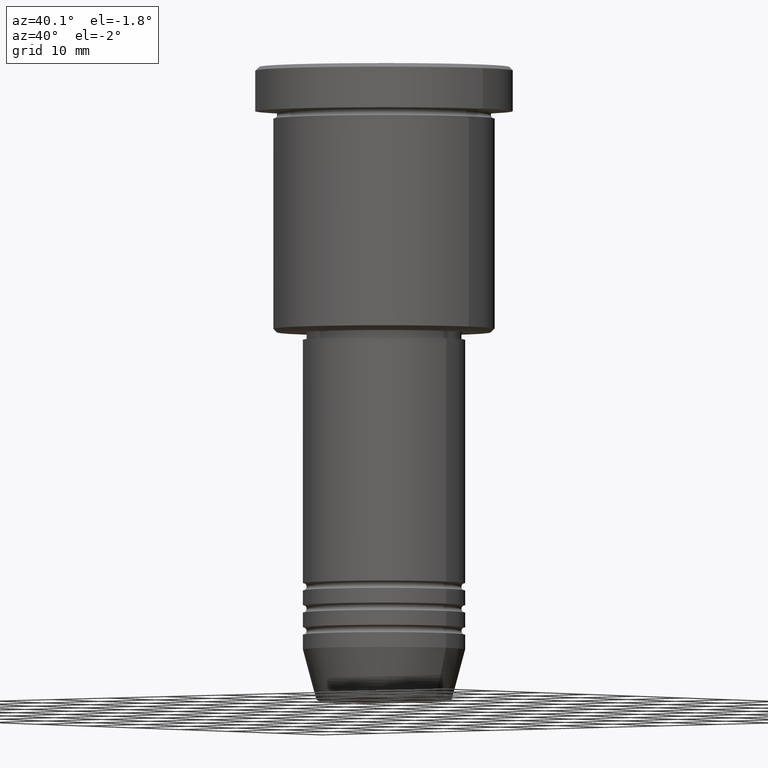
[diagram: clean part render]
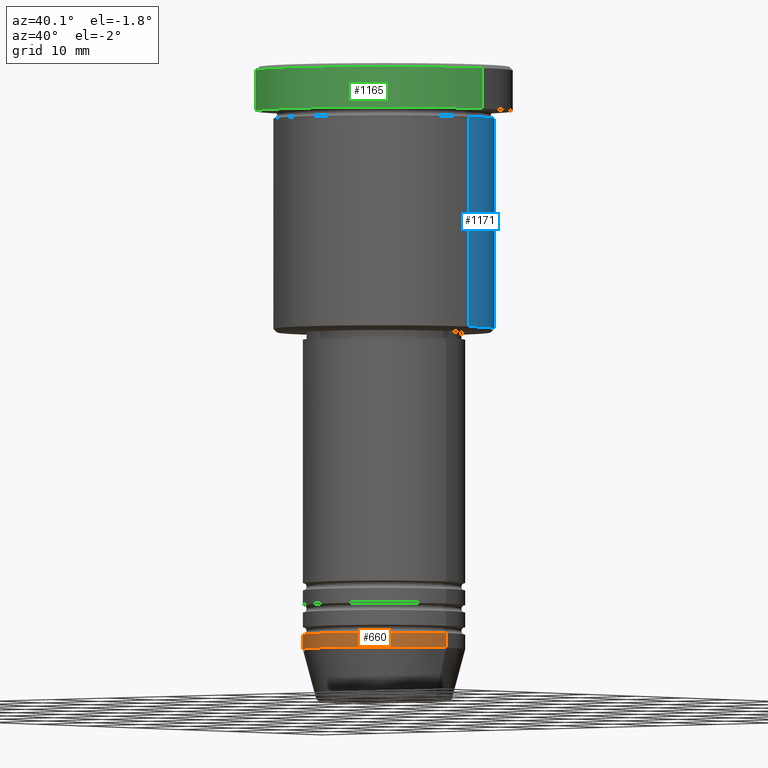
[diagram: same view with three faces highlighted in distinct colors, each labeled with its STEP entity id]
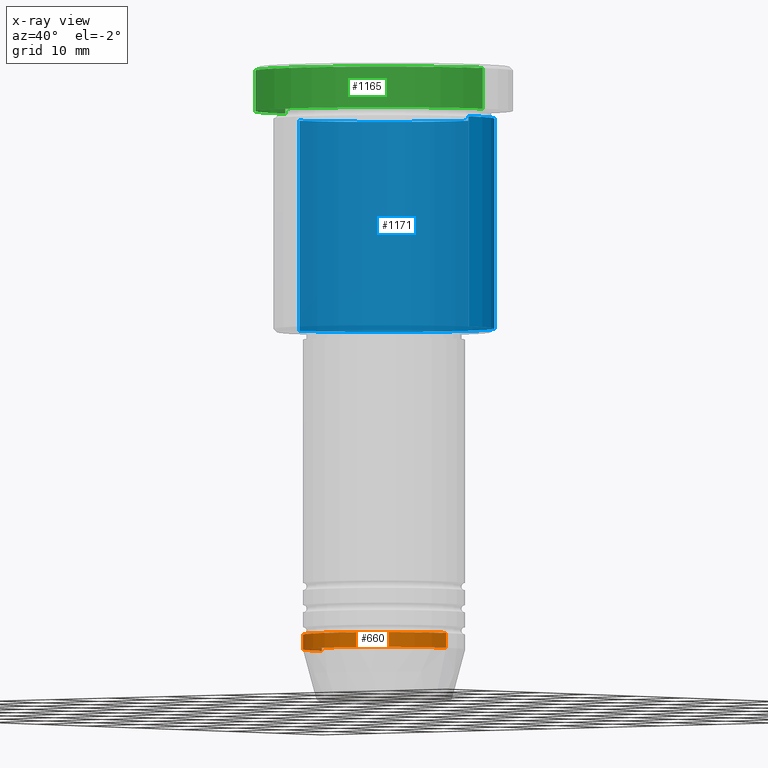
[diagram: x-ray of the same camera — body ghosted, the three highlighted faces saturated]
A machine part, auxiliary view with three faces highlighted in distinct colors.
The next image is the same camera in x-ray (body ghosted, the three faces saturated) — at least one of them is partly hidden behind the body in this view.
Their STEP definitions:

[orange] entity #660 — the highlighted cylindrical surface (partial cylindrical patch) has radius 11 mm, axis along (-0, -0, 1).
#15 = EDGE_CURVE ( 'NONE', #498, #63, #517, .T. ) ;
#63 = VERTEX_POINT ( 'NONE', #175 ) ;
#92 = ORIENTED_EDGE ( 'NONE', *, *, #15, .T. ) ;
#150 = CARTESIAN_POINT ( 'NONE',  ( -11.00000000000000000, 1.347111479062088405E-15, 0.000000000000000000 ) ) ;
#175 = CARTESIAN_POINT ( 'NONE',  ( 11.00000000000000000, 0.000000000000000000, -77.00000000000000000 ) ) ;
#205 = EDGE_CURVE ( 'NONE', #381, #63, #525, .T. ) ;
#230 = VERTEX_POINT ( 'NONE', #824 ) ;
#272 = DIRECTION ( 'NONE',  ( -0.000000000000000000, -0.000000000000000000, 1.000000000000000000 ) ) ;
#339 = CARTESIAN_POINT ( 'NONE',  ( 11.00000000000000000, 0.000000000000000000, -79.00000000000000000 ) ) ;
#371 = EDGE_LOOP ( 'NONE', ( #437, #993, #92, #602 ) ) ;
#381 = VERTEX_POINT ( 'NONE', #679 ) ;
#403 = DIRECTION ( 'NONE',  ( -0.000000000000000000, -0.000000000000000000, 1.000000000000000000 ) ) ;
#412 = EDGE_CURVE ( 'NONE', #230, #381, #776, .T. ) ;
#423 = AXIS2_PLACEMENT_3D ( 'NONE', #1012, #1024, #917 ) ;
#437 = ORIENTED_EDGE ( 'NONE', *, *, #412, .F. ) ;
#469 = CYLINDRICAL_SURFACE ( 'NONE', #423, 11.00000000000000000 ) ;
#498 = VERTEX_POINT ( 'NONE', #339 ) ;
#507 = AXIS2_PLACEMENT_3D ( 'NONE', #568, #845, #1033 ) ;
#511 = DIRECTION ( 'NONE',  ( -0.000000000000000000, -0.000000000000000000, 1.000000000000000000 ) ) ;
#517 = LINE ( 'NONE', #972, #652 ) ;
#525 = CIRCLE ( 'NONE', #507, 11.00000000000000000 ) ;
#568 = CARTESIAN_POINT ( 'NONE',  ( 0.000000000000000000, 0.000000000000000000, -77.00000000000000000 ) ) ;
#602 = ORIENTED_EDGE ( 'NONE', *, *, #205, .F. ) ;
#652 = VECTOR ( 'NONE', #403, 1000.000000000000000 ) ;
#660 = ADVANCED_FACE ( 'NONE', ( #1108 ), #469, .T. ) ;
#679 = CARTESIAN_POINT ( 'NONE',  ( -11.00000000000000000, 1.347111479062088405E-15, -77.00000000000000000 ) ) ;
#712 = EDGE_CURVE ( 'NONE', #230, #498, #985, .T. ) ;
#776 = LINE ( 'NONE', #150, #973 ) ;
#824 = CARTESIAN_POINT ( 'NONE',  ( -11.00000000000000000, 1.347111479062088405E-15, -79.00000000000000000 ) ) ;
#844 = DIRECTION ( 'NONE',  ( 1.000000000000000000, 0.000000000000000000, 0.000000000000000000 ) ) ;
#845 = DIRECTION ( 'NONE',  ( -0.000000000000000000, -0.000000000000000000, 1.000000000000000000 ) ) ;
#917 = DIRECTION ( 'NONE',  ( 1.000000000000000000, 0.000000000000000000, 0.000000000000000000 ) ) ;
#931 = CARTESIAN_POINT ( 'NONE',  ( 0.000000000000000000, 0.000000000000000000, -79.00000000000000000 ) ) ;
#972 = CARTESIAN_POINT ( 'NONE',  ( 11.00000000000000000, 0.000000000000000000, 0.000000000000000000 ) ) ;
#973 = VECTOR ( 'NONE', #511, 1000.000000000000000 ) ;
#985 = CIRCLE ( 'NONE', #990, 11.00000000000000000 ) ;
#990 = AXIS2_PLACEMENT_3D ( 'NONE', #931, #272, #844 ) ;
#993 = ORIENTED_EDGE ( 'NONE', *, *, #712, .T. ) ;
#1012 = CARTESIAN_POINT ( 'NONE',  ( 0.000000000000000000, 0.000000000000000000, 0.000000000000000000 ) ) ;
#1024 = DIRECTION ( 'NONE',  ( -0.000000000000000000, -0.000000000000000000, 1.000000000000000000 ) ) ;
#1033 = DIRECTION ( 'NONE',  ( 1.000000000000000000, 0.000000000000000000, 0.000000000000000000 ) ) ;
#1108 = FACE_OUTER_BOUND ( 'NONE', #371, .T. ) ;

[blue] entity #1171 — the highlighted cylindrical surface (partial cylindrical patch) has radius 15 mm, axis along (-0, -0, 1).
#11 = CARTESIAN_POINT ( 'NONE',  ( 0.000000000000000000, 0.000000000000000000, 0.000000000000000000 ) ) ;
#18 = DIRECTION ( 'NONE',  ( -0.000000000000000000, -0.000000000000000000, 1.000000000000000000 ) ) ;
#32 = VERTEX_POINT ( 'NONE', #1091 ) ;
#133 = ORIENTED_EDGE ( 'NONE', *, *, #649, .T. ) ;
#170 = ORIENTED_EDGE ( 'NONE', *, *, #1094, .T. ) ;
#280 = CARTESIAN_POINT ( 'NONE',  ( 15.00000000000000000, 0.000000000000000000, 0.000000000000000000 ) ) ;
#288 = DIRECTION ( 'NONE',  ( -0.000000000000000000, -0.000000000000000000, 1.000000000000000000 ) ) ;
#296 = FACE_OUTER_BOUND ( 'NONE', #589, .T. ) ;
#311 = AXIS2_PLACEMENT_3D ( 'NONE', #11, #18, #1097 ) ;
#319 = EDGE_CURVE ( 'NONE', #910, #32, #1109, .T. ) ;
#331 = ORIENTED_EDGE ( 'NONE', *, *, #523, .F. ) ;
#343 = DIRECTION ( 'NONE',  ( 1.000000000000000000, 0.000000000000000000, 0.000000000000000000 ) ) ;
#346 = CARTESIAN_POINT ( 'NONE',  ( -15.00000000000000000, 1.836970198721029589E-15, -6.999999999999995559 ) ) ;
#348 = VECTOR ( 'NONE', #639, 1000.000000000000000 ) ;
#349 = CARTESIAN_POINT ( 'NONE',  ( 0.000000000000000000, 0.000000000000000000, -6.999999999999995559 ) ) ;
#357 = DIRECTION ( 'NONE',  ( -0.000000000000000000, -0.000000000000000000, 1.000000000000000000 ) ) ;
#408 = VECTOR ( 'NONE', #640, 1000.000000000000000 ) ;
#459 = CYLINDRICAL_SURFACE ( 'NONE', #311, 15.00000000000000000 ) ;
#466 = VERTEX_POINT ( 'NONE', #761 ) ;
#523 = EDGE_CURVE ( 'NONE', #32, #936, #1107, .T. ) ;
#589 = EDGE_LOOP ( 'NONE', ( #170, #133, #331, #964 ) ) ;
#639 = DIRECTION ( 'NONE',  ( -0.000000000000000000, -0.000000000000000000, 1.000000000000000000 ) ) ;
#640 = DIRECTION ( 'NONE',  ( -0.000000000000000000, -0.000000000000000000, 1.000000000000000000 ) ) ;
#649 = EDGE_CURVE ( 'NONE', #466, #936, #830, .T. ) ;
#745 = CARTESIAN_POINT ( 'NONE',  ( -15.00000000000000000, 1.836970198721029589E-15, 0.000000000000000000 ) ) ;
#747 = CIRCLE ( 'NONE', #850, 15.00000000000000000 ) ;
#761 = CARTESIAN_POINT ( 'NONE',  ( -15.00000000000000000, 1.836970198721029589E-15, -35.49999999999997868 ) ) ;
#830 = LINE ( 'NONE', #745, #348 ) ;
#850 = AXIS2_PLACEMENT_3D ( 'NONE', #1021, #288, #1015 ) ;
#910 = VERTEX_POINT ( 'NONE', #1061 ) ;
#936 = VERTEX_POINT ( 'NONE', #346 ) ;
#964 = ORIENTED_EDGE ( 'NONE', *, *, #319, .F. ) ;
#1015 = DIRECTION ( 'NONE',  ( -1.000000000000000000, 0.000000000000000000, 0.000000000000000000 ) ) ;
#1021 = CARTESIAN_POINT ( 'NONE',  ( 0.000000000000000000, 0.000000000000000000, -35.49999999999997868 ) ) ;
#1061 = CARTESIAN_POINT ( 'NONE',  ( 15.00000000000000000, 0.000000000000000000, -35.49999999999997868 ) ) ;
#1091 = CARTESIAN_POINT ( 'NONE',  ( 15.00000000000000000, 0.000000000000000000, -6.999999999999995559 ) ) ;
#1094 = EDGE_CURVE ( 'NONE', #910, #466, #747, .T. ) ;
#1097 = DIRECTION ( 'NONE',  ( 1.000000000000000000, 0.000000000000000000, 0.000000000000000000 ) ) ;
#1107 = CIRCLE ( 'NONE', #1142, 15.00000000000000000 ) ;
#1109 = LINE ( 'NONE', #280, #408 ) ;
#1142 = AXIS2_PLACEMENT_3D ( 'NONE', #349, #357, #343 ) ;
#1171 = ADVANCED_FACE ( 'NONE', ( #296 ), #459, .T. ) ;

[green] entity #1165 — the highlighted cylindrical surface (partial cylindrical patch) has radius 17.5 mm, axis along (-0, -0, 1).
#25 = LINE ( 'NONE', #204, #218 ) ;
#28 = EDGE_CURVE ( 'NONE', #1113, #324, #88, .T. ) ;
#58 = DIRECTION ( 'NONE',  ( 0.000000000000000000, 0.000000000000000000, -1.000000000000000000 ) ) ;
#88 = CIRCLE ( 'NONE', #334, 17.50000000000000000 ) ;
#101 = CARTESIAN_POINT ( 'NONE',  ( 0.000000000000000000, 0.000000000000000000, 0.000000000000000000 ) ) ;
#134 = EDGE_LOOP ( 'NONE', ( #323, #152, #564, #1156 ) ) ;
#152 = ORIENTED_EDGE ( 'NONE', *, *, #28, .T. ) ;
#184 = CARTESIAN_POINT ( 'NONE',  ( 0.000000000000000000, 0.000000000000000000, -5.999999999999995559 ) ) ;
#187 = DIRECTION ( 'NONE',  ( -0.000000000000000000, -0.000000000000000000, 1.000000000000000000 ) ) ;
#202 = FACE_OUTER_BOUND ( 'NONE', #134, .T. ) ;
#204 = CARTESIAN_POINT ( 'NONE',  ( -17.50000000000000000, 2.143131898507868248E-15, 0.000000000000000000 ) ) ;
#218 = VECTOR ( 'NONE', #561, 1000.000000000000000 ) ;
#252 = DIRECTION ( 'NONE',  ( -0.000000000000000000, -0.000000000000000000, 1.000000000000000000 ) ) ;
#278 = CARTESIAN_POINT ( 'NONE',  ( -17.50000000000000000, 2.143131898507868248E-15, -5.999999999999995559 ) ) ;
#317 = CARTESIAN_POINT ( 'NONE',  ( 0.000000000000000000, 0.000000000000000000, -0.4999999999999864553 ) ) ;
#323 = ORIENTED_EDGE ( 'NONE', *, *, #675, .F. ) ;
#324 = VERTEX_POINT ( 'NONE', #924 ) ;
#327 = EDGE_CURVE ( 'NONE', #1162, #330, #716, .T. ) ;
#330 = VERTEX_POINT ( 'NONE', #1160 ) ;
#334 = AXIS2_PLACEMENT_3D ( 'NONE', #184, #252, #986 ) ;
#370 = LINE ( 'NONE', #638, #632 ) ;
#548 = CARTESIAN_POINT ( 'NONE',  ( 17.50000000000000000, 0.000000000000000000, -0.4999999999999864553 ) ) ;
#561 = DIRECTION ( 'NONE',  ( -0.000000000000000000, -0.000000000000000000, 1.000000000000000000 ) ) ;
#564 = ORIENTED_EDGE ( 'NONE', *, *, #1159, .T. ) ;
#632 = VECTOR ( 'NONE', #187, 1000.000000000000000 ) ;
#638 = CARTESIAN_POINT ( 'NONE',  ( 17.50000000000000000, 0.000000000000000000, 0.000000000000000000 ) ) ;
#670 = DIRECTION ( 'NONE',  ( 1.000000000000000000, 0.000000000000000000, 0.000000000000000000 ) ) ;
#675 = EDGE_CURVE ( 'NONE', #1113, #330, #25, .T. ) ;
#716 = CIRCLE ( 'NONE', #1009, 17.50000000000000000 ) ;
#815 = DIRECTION ( 'NONE',  ( 1.000000000000000000, 0.000000000000000000, 0.000000000000000000 ) ) ;
#915 = DIRECTION ( 'NONE',  ( -0.000000000000000000, -0.000000000000000000, 1.000000000000000000 ) ) ;
#919 = CYLINDRICAL_SURFACE ( 'NONE', #948, 17.50000000000000000 ) ;
#924 = CARTESIAN_POINT ( 'NONE',  ( 17.50000000000000000, 0.000000000000000000, -5.999999999999995559 ) ) ;
#948 = AXIS2_PLACEMENT_3D ( 'NONE', #101, #915, #815 ) ;
#986 = DIRECTION ( 'NONE',  ( 1.000000000000000000, 0.000000000000000000, 0.000000000000000000 ) ) ;
#1009 = AXIS2_PLACEMENT_3D ( 'NONE', #317, #58, #670 ) ;
#1113 = VERTEX_POINT ( 'NONE', #278 ) ;
#1156 = ORIENTED_EDGE ( 'NONE', *, *, #327, .T. ) ;
#1159 = EDGE_CURVE ( 'NONE', #324, #1162, #370, .T. ) ;
#1160 = CARTESIAN_POINT ( 'NONE',  ( -17.50000000000000000, 2.143131898507868248E-15, -0.4999999999999864553 ) ) ;
#1162 = VERTEX_POINT ( 'NONE', #548 ) ;
#1165 = ADVANCED_FACE ( 'NONE', ( #202 ), #919, .T. ) ;